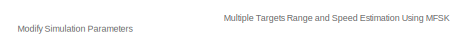
[diagram: root canvas - part 1/2, top left region]
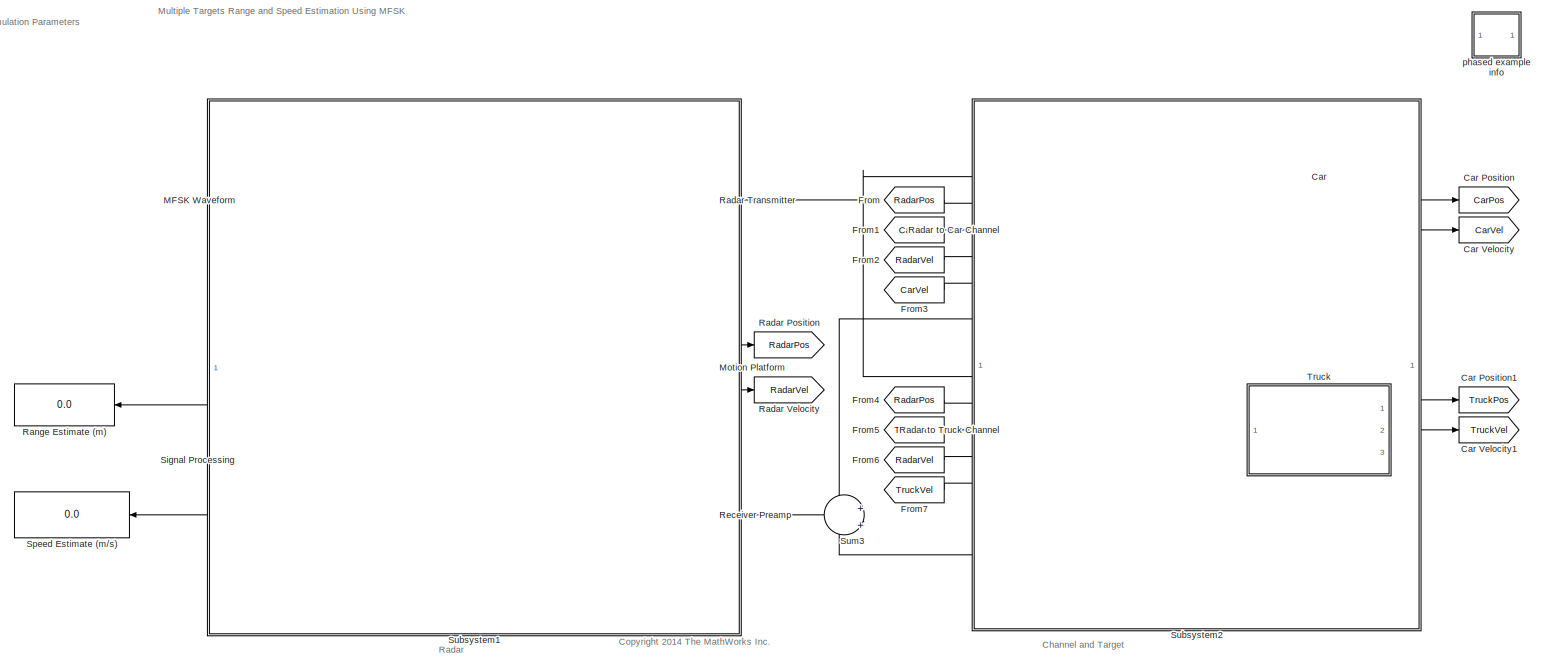
[diagram: root canvas - part 2/2, most of the canvas]
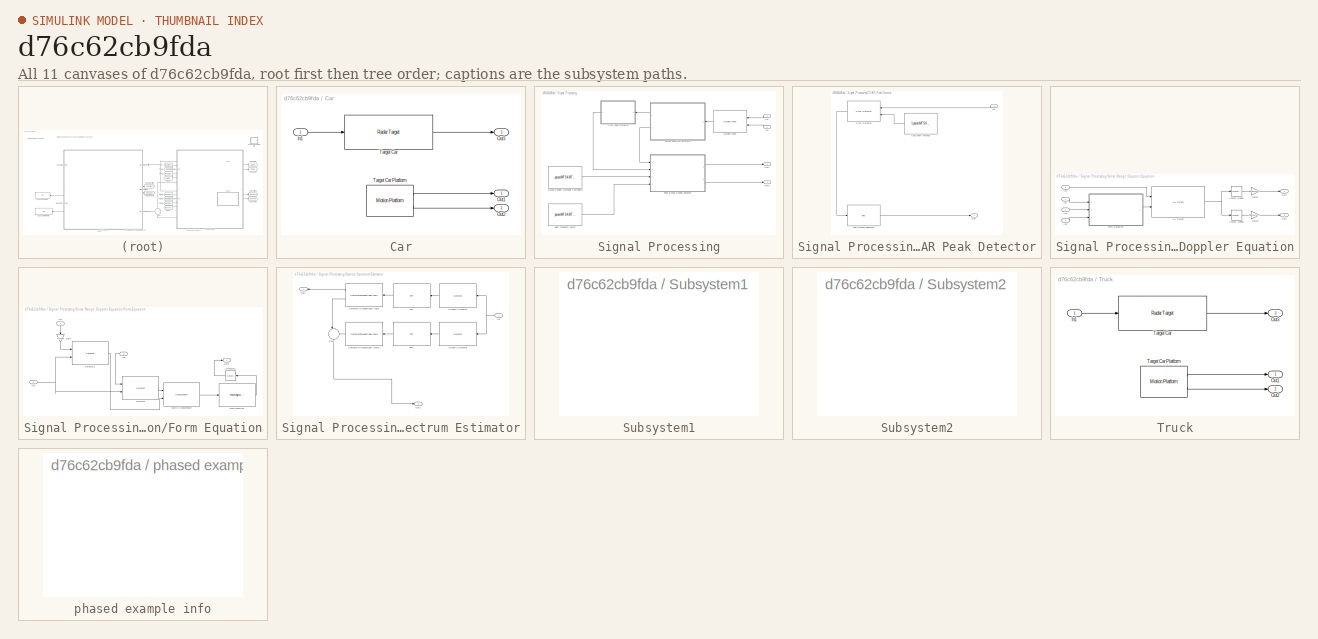
[diagram: thumbnail index - all 11 canvases of the model, root first then tree order]
MODEL slx_d76c62cb9fda
KIND model
CONFIG AbsTol = auto
CONFIG EnableMultiTasking = on
CONFIG FixedStep = auto
CONFIG MaxStep = auto
CONFIG MinStep = auto
CONFIG PreLoadFcn = helperslexMFSKMultiTargetsParam\n
CONFIG RelTol = 1e-3
CONFIG SampleTimeConstraint = Unconstrained
CONFIG Solver = FixedStepDiscrete
CONFIG SolverName = FixedStepDiscrete
CONFIG StartTime = 0.0
CONFIG StopTime = paramMFSKMT.T
BLOCK [SubSystem] Car
  Ports = [1, 3]
  RequestExecContextInheritance = off
BLOCK [Goto] Car Position
  GotoTag = CarPos
BLOCK [Goto] Car Position1
  GotoTag = TruckPos
BLOCK [Goto] Car Velocity
  GotoTag = CarVel
BLOCK [Goto] Car Velocity1
  GotoTag = TruckVel
BLOCK [Inport] Car/In1
  IconDisplay = Port number
BLOCK [Outport] Car/Out1
  IconDisplay = Port number
BLOCK [Outport] Car/Out2
  IconDisplay = Port number
  Port = 2
BLOCK [Outport] Car/Out3
  IconDisplay = Port number
  Port = 3
BLOCK [Reference] Car/Target Car  REF=phasedenvlib/Radar Target
  Ports = [1, 1]
  SourceBlock = phasedenvlib/Radar Target
  SourceProductBaseCode = AR
  SourceProductName = Phased Array System Toolbox
  SourceType = phased.RadarTarget
BLOCK [Reference] Car/Target Car Platform  REF=phasedenvlib/Motion Platform
  Ports = [0, 2]
  SourceBlock = phasedenvlib/Motion Platform
  SourceProductBaseCode = AR
  SourceProductName = Phased Array System Toolbox
  SourceType = phased.internal.SimulinkPlatform
BLOCK [From] From
  GotoTag = RadarPos
BLOCK [From] From1
  GotoTag = CarPos
BLOCK [From] From2
  GotoTag = RadarVel
BLOCK [From] From3
  GotoTag = CarVel
BLOCK [From] From4
  GotoTag = RadarPos
BLOCK [From] From5
  GotoTag = TruckPos
BLOCK [From] From6
  GotoTag = RadarVel
BLOCK [From] From7
  GotoTag = TruckVel
BLOCK [Reference] MFSK Waveform  REF=phasedwavlib/MFSK Waveform
  Ports = [0, 1]
  SourceBlock = phasedwavlib/MFSK Waveform
  SourceProductBaseCode = AR
  SourceProductName = Phased Array System Toolbox
  SourceType = phased.MFSKWaveform
BLOCK [Reference] Motion Platform  REF=phasedenvlib/Motion Platform
  Ports = [0, 2]
  SourceBlock = phasedenvlib/Motion Platform
  SourceProductBaseCode = AR
  SourceProductName = Phased Array System Toolbox
  SourceType = phased.internal.SimulinkPlatform
BLOCK [Goto] Radar Position
  GotoTag = RadarPos
BLOCK [Reference] Radar Transmitter  REF=phasedtxrxlib/Transmitter
  Ports = [1, 1]
  SourceBlock = phasedtxrxlib/Transmitter
  SourceProductBaseCode = AR
  SourceProductName = Phased Array System Toolbox
  SourceType = phased.Transmitter
BLOCK [Goto] Radar Velocity
  GotoTag = RadarVel
BLOCK [Reference] Radar to Car Channel  REF=phasedenvlib/Free Space
  Ports = [5, 1]
  SourceBlock = phasedenvlib/Free Space
  SourceProductBaseCode = AR
  SourceProductName = Phased Array System Toolbox
  SourceType = phased.FreeSpace
BLOCK [Reference] Radar to Truck Channel  REF=phasedenvlib/Free Space
  Ports = [5, 1]
  SourceBlock = phasedenvlib/Free Space
  SourceProductBaseCode = AR
  SourceProductName = Phased Array System Toolbox
  SourceType = phased.FreeSpace
BLOCK [Display] Range Estimate (m)
  Decimation = 1
  Ports = [1]
BLOCK [Reference] Receiver Preamp  REF=phasedtxrxlib/Receiver Preamp
  Ports = [1, 1]
  SourceBlock = phasedtxrxlib/Receiver Preamp
  SourceProductBaseCode = AR
  SourceProductName = Phased Array System Toolbox
  SourceType = phased.internal.SimulinkReceiverPreamp
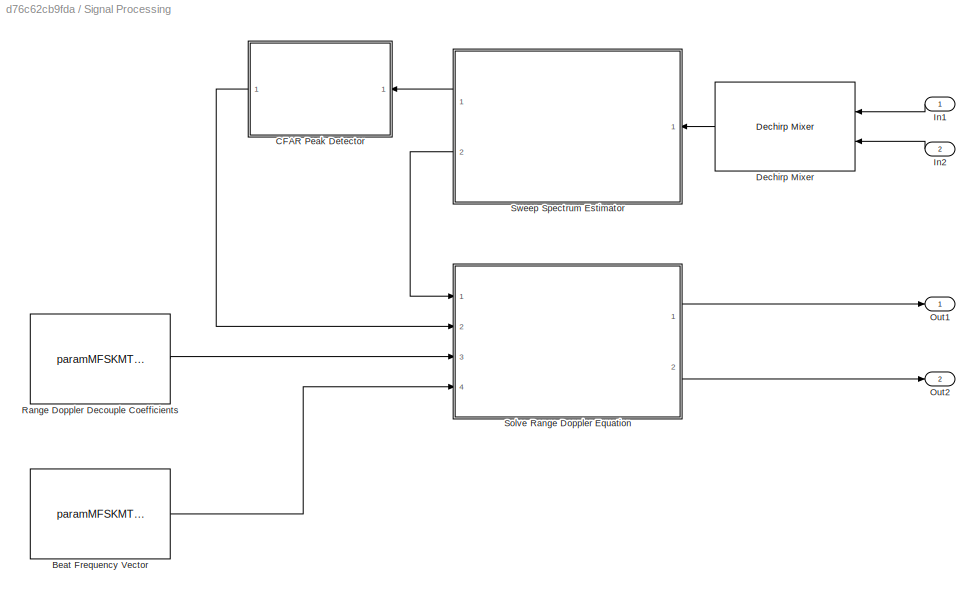
BLOCK [SubSystem] Signal Processing
  Ports = [2, 2]
  RequestExecContextInheritance = off
BLOCK [Constant] Signal Processing/Beat Frequency Vector
  Value = paramMFSKMT.beatfreq_vec
  VectorParams1D = off
BLOCK [SubSystem] Signal Processing/CFAR Peak Detector
  Ports = [1, 1]
  RequestExecContextInheritance = off
BLOCK [Reference] Signal Processing/CFAR Peak Detector/CFAR Detector  REF=phaseddetectlib/CFAR Detector
  Ports = [2, 1]
  SourceBlock = phaseddetectlib/CFAR Detector
  SourceProductBaseCode = AR
  SourceProductName = Phased Array System Toolbox
  SourceType = phased.CFARDetector
BLOCK [Constant] Signal Processing/CFAR Peak Detector/Cell Under Interest
  Value = 1:paramMFSKMT.Nstep/2
BLOCK [Find] Signal Processing/CFAR Peak Detector/Find Nonzero Elements
  NumberOfInputDimensions = 3
  Ports = [1, 1]
BLOCK [Inport] Signal Processing/CFAR Peak Detector/In1
  IconDisplay = Port number
BLOCK [Outport] Signal Processing/CFAR Peak Detector/Out1
  IconDisplay = Port number
BLOCK [Reference] Signal Processing/Dechirp Mixer  REF=phaseddetectlib/Dechirp Mixer
  Ports = [2, 1]
  SourceBlock = phaseddetectlib/Dechirp Mixer
  SourceProductBaseCode = AR
  SourceProductName = Phased Array System Toolbox
  SourceType = Dechirp
BLOCK [Inport] Signal Processing/In1
  IconDisplay = Port number
BLOCK [Inport] Signal Processing/In2
  IconDisplay = Port number
  Port = 2
BLOCK [Outport] Signal Processing/Out1
  IconDisplay = Port number
BLOCK [Outport] Signal Processing/Out2
  IconDisplay = Port number
  Port = 2
BLOCK [Constant] Signal Processing/Range Doppler Decouple Coefficients
  Value = paramMFSKMT.RDDecoupleCoeff
  VectorParams1D = off
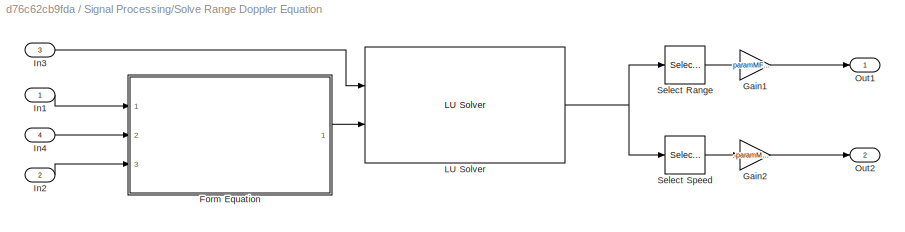
BLOCK [SubSystem] Signal Processing/Solve Range Doppler Equation
  Ports = [4, 2]
  RequestExecContextInheritance = off
BLOCK [SubSystem] Signal Processing/Solve Range Doppler Equation/Form Equation
  Ports = [3, 1]
  RequestExecContextInheritance = off
BLOCK [Gain] Signal Processing/Solve Range Doppler Equation/Form Equation/Gain
  Gain = 1/(2*pi)
  OutDataTypeStr = Inherit: Inherit via internal rule
  ParamDataTypeStr = Inherit: Inherit via internal rule
  SaturateOnIntegerOverflow = off
BLOCK [Inport] Signal Processing/Solve Range Doppler Equation/Form Equation/In1
  IconDisplay = Port number
BLOCK [Inport] Signal Processing/Solve Range Doppler Equation/Form Equation/In2
  IconDisplay = Port number
  Port = 2
BLOCK [Inport] Signal Processing/Solve Range Doppler Equation/Form Equation/In3
  IconDisplay = Port number
  Port = 3
BLOCK [Math] Signal Processing/Solve Range Doppler Equation/Form Equation/Math Function
  Operator = transpose
  Ports = [1, 1]
BLOCK [Concatenate] Signal Processing/Solve Range Doppler Equation/Form Equation/Matrix Concatenate
  ConcatenateDimension = 2
  Mode = Multidimensional array
  Ports = [2, 1]
BLOCK [Outport] Signal Processing/Solve Range Doppler Equation/Form Equation/Out1
  IconDisplay = Port number
BLOCK [Selector] Signal Processing/Solve Range Doppler Equation/Form Equation/Selector
  IndexOptions = Index vector (port),Index vector (dialog)
  Indices = [1 3],1
  InputPortWidth = 3
  NumberOfDimensions = 2
  OutputSizes = 1,1
  Ports = [2, 1]
BLOCK [Selector] Signal Processing/Solve Range Doppler Equation/Form Equation/Selector1
  IndexOptions = Index vector (port),Index vector (dialog)
  Indices = [1 3],1
  InputPortWidth = 3
  NumberOfDimensions = 2
  OutputSizes = 1,1
  Ports = [2, 1]
BLOCK [Selector] Signal Processing/Solve Range Doppler Equation/Form Equation/Selector2
  IndexOptions = Index vector (dialog),Index vector (dialog)
  Indices = [1 2],[1 2]
  InputPortWidth = 3
  NumberOfDimensions = 2
  OutputSizes = 1,1
  Ports = [1, 1]
BLOCK [Gain] Signal Processing/Solve Range Doppler Equation/Gain1
  Gain = paramMFSKMT.C/2
  OutDataTypeStr = Inherit: Inherit via internal rule
  ParamDataTypeStr = Inherit: Inherit via internal rule
  SaturateOnIntegerOverflow = off
BLOCK [Gain] Signal Processing/Solve Range Doppler Equation/Gain2
  Gain = -paramMFSKMT.lambda/2
  OutDataTypeStr = Inherit: Inherit via internal rule
  ParamDataTypeStr = Inherit: Inherit via internal rule
  SaturateOnIntegerOverflow = off
BLOCK [Inport] Signal Processing/Solve Range Doppler Equation/In1
  IconDisplay = Port number
BLOCK [Inport] Signal Processing/Solve Range Doppler Equation/In2
  IconDisplay = Port number
  Port = 2
BLOCK [Inport] Signal Processing/Solve Range Doppler Equation/In3
  IconDisplay = Port number
  Port = 3
BLOCK [Inport] Signal Processing/Solve Range Doppler Equation/In4
  IconDisplay = Port number
  Port = 4
BLOCK [Reference] Signal Processing/Solve Range Doppler Equation/LU Solver  REF=dspsolvers/LU Solver
  Ports = [2, 1]
  SourceBlock = dspsolvers/LU Solver
  SourceProductBaseCode = DS
  SourceProductName = DSP System Toolbox
  SourceType = LU Solver
BLOCK [Outport] Signal Processing/Solve Range Doppler Equation/Out1
  IconDisplay = Port number
BLOCK [Outport] Signal Processing/Solve Range Doppler Equation/Out2
  IconDisplay = Port number
  Port = 2
BLOCK [Selector] Signal Processing/Solve Range Doppler Equation/Select Range
  IndexOptions = Index vector (dialog),Select all
  Indices = 1,1
  InputPortWidth = 3
  NumberOfDimensions = 2
  OutputSizes = 1,1
  Ports = [1, 1]
BLOCK [Selector] Signal Processing/Solve Range Doppler Equation/Select Speed
  IndexOptions = Index vector (dialog),Select all
  Indices = 2,1
  InputPortWidth = 3
  NumberOfDimensions = 2
  OutputSizes = 1,1
  Ports = [1, 1]
BLOCK [SubSystem] Signal Processing/Sweep Spectrum Estimator
  Ports = [1, 2]
  RequestExecContextInheritance = off
BLOCK [ComplexToMagnitudeAngle] Signal Processing/Sweep Spectrum Estimator/Complex to Magnitude-Angle
  Ports = [1, 2]
BLOCK [ComplexToMagnitudeAngle] Signal Processing/Sweep Spectrum Estimator/Complex to Magnitude-Angle1
  Output = Angle
  Ports = [1, 1]
BLOCK [Reference] Signal Processing/Sweep Spectrum Estimator/FFT  REF=dspxfrm3/FFT
  Ports = [1, 1]
  SourceBlock = dspxfrm3/FFT
  SourceProductBaseCode = DS
  SourceProductName = DSP System Toolbox
  SourceType = FFT
BLOCK [Reference] Signal Processing/Sweep Spectrum Estimator/FFT1  REF=dspxfrm3/FFT
  Ports = [1, 1]
  SourceBlock = dspxfrm3/FFT
  SourceProductBaseCode = DS
  SourceProductName = DSP System Toolbox
  SourceType = FFT
BLOCK [Inport] Signal Processing/Sweep Spectrum Estimator/In1
  IconDisplay = Port number
BLOCK [Outport] Signal Processing/Sweep Spectrum Estimator/Out1
  IconDisplay = Port number
BLOCK [Outport] Signal Processing/Sweep Spectrum Estimator/Out2
  IconDisplay = Port number
  Port = 2
BLOCK [Sum] Signal Processing/Sweep Spectrum Estimator/Sum
  IconShape = round
  InputSameDT = off
  Inputs = |-+
  OutDataTypeStr = Inherit: Inherit via internal rule
  Ports = [2, 1]
  SaturateOnIntegerOverflow = off
BLOCK [Selector] Signal Processing/Sweep Spectrum Estimator/Sweep 1 Selector
  IndexOptions = Index vector (dialog),Index vector (dialog)
  Indices = (1:2:paramMFSKMT.Nstep)*paramMFSKMT.Nsampperstep,1
  InputPortWidth = 3
  NumberOfDimensions = 2
  OutputSizes = 1,1
  Ports = [1, 1]
BLOCK [Selector] Signal Processing/Sweep Spectrum Estimator/Sweep 2 Selector
  IndexOptions = Index vector (dialog),Index vector (dialog)
  Indices = (2:2:paramMFSKMT.Nstep)*paramMFSKMT.Nsampperstep,1
  InputPortWidth = 3
  NumberOfDimensions = 2
  OutputSizes = 1,1
  Ports = [1, 1]
BLOCK [Display] Speed Estimate (m//s)
  Decimation = 1
  Ports = [1]
BLOCK [SubSystem] Subsystem1
  Ports = []
  RequestExecContextInheritance = off
BLOCK [SubSystem] Subsystem2
  Ports = []
  RequestExecContextInheritance = off
BLOCK [Sum] Sum3
  IconShape = round
  InputSameDT = off
  Inputs = +|+
  OutDataTypeStr = Inherit: Inherit via internal rule
  Ports = [2, 1]
  SaturateOnIntegerOverflow = off
BLOCK [SubSystem] Truck
  Ports = [1, 3]
  RequestExecContextInheritance = off
BLOCK [Inport] Truck/In1
  IconDisplay = Port number
BLOCK [Outport] Truck/Out1
  IconDisplay = Port number
BLOCK [Outport] Truck/Out2
  IconDisplay = Port number
  Port = 2
BLOCK [Outport] Truck/Out3
  IconDisplay = Port number
  Port = 3
BLOCK [Reference] Truck/Target Car  REF=phasedenvlib/Radar Target
  Ports = [1, 1]
  SourceBlock = phasedenvlib/Radar Target
  SourceProductBaseCode = AR
  SourceProductName = Phased Array System Toolbox
  SourceType = phased.RadarTarget
BLOCK [Reference] Truck/Target Car Platform  REF=phasedenvlib/Motion Platform
  Ports = [0, 2]
  SourceBlock = phasedenvlib/Motion Platform
  SourceProductBaseCode = AR
  SourceProductName = Phased Array System Toolbox
  SourceType = phased.internal.SimulinkPlatform
BLOCK [SubSystem] phased example info
  OpenFcn = modelname = 'slexFMCWExample';\nhelpview(fullfile(matlabroot,'help','phased','helptargets.map'),sprintf('%sExample',modelname));\nclear modelname;
  Ports = []
  RequestExecContextInheritance = off
ANNOTATION (root): Channel and Target
ANNOTATION (root): Radar
ANNOTATION (root): <copyright redacted>
ANNOTATION (root): Multiple Targets Range and Speed Estimation Using MFSK
ANNOTATION (root): Modify Simulation Parameters
LINE Car/In1:1 -> Car/Target Car:1
LINE Car/Target Car Platform:1 -> Car/Out1:1
LINE Car/Target Car Platform:2 -> Car/Out2:1
LINE Car/Target Car:1 -> Car/Out3:1
LINE Car:1 -> Car Position:1
LINE Car:2 -> Car Velocity:1
LINE Car:3 -> Sum3:1
LINE From1:1 -> Radar to Car Channel:3
LINE From2:1 -> Radar to Car Channel:4
LINE From3:1 -> Radar to Car Channel:5
LINE From4:1 -> Radar to Truck Channel:2
LINE From5:1 -> Radar to Truck Channel:3
LINE From6:1 -> Radar to Truck Channel:4
LINE From7:1 -> Radar to Truck Channel:5
LINE From:1 -> Radar to Car Channel:2
NET MFSK Waveform:1 -> Radar Transmitter:1, Signal Processing:1
LINE Motion Platform:1 -> Radar Position:1
LINE Motion Platform:2 -> Radar Velocity:1
NET Radar Transmitter:1 -> Radar to Car Channel:1, Radar to Truck Channel:1
LINE Radar to Car Channel:1 -> Car:1
LINE Radar to Truck Channel:1 -> Truck:1
LINE Receiver Preamp:1 -> Signal Processing:2
LINE Signal Processing/Beat Frequency Vector:1 -> Signal Processing/Solve Range Doppler Equation:4
LINE Signal Processing/CFAR Peak Detector/CFAR Detector:1 -> Signal Processing/CFAR Peak Detector/Find Nonzero Elements:1
LINE Signal Processing/CFAR Peak Detector/Cell Under Interest:1 -> Signal Processing/CFAR Peak Detector/CFAR Detector:2
LINE Signal Processing/CFAR Peak Detector/Find Nonzero Elements:1 -> Signal Processing/CFAR Peak Detector/Out1:1
LINE Signal Processing/CFAR Peak Detector/In1:1 -> Signal Processing/CFAR Peak Detector/CFAR Detector:1
LINE Signal Processing/CFAR Peak Detector:1 -> Signal Processing/Solve Range Doppler Equation:2
LINE Signal Processing/Dechirp Mixer:1 -> Signal Processing/Sweep Spectrum Estimator:1
LINE Signal Processing/In1:1 -> Signal Processing/Dechirp Mixer:1
LINE Signal Processing/In2:1 -> Signal Processing/Dechirp Mixer:2
LINE Signal Processing/Range Doppler Decouple Coefficients:1 -> Signal Processing/Solve Range Doppler Equation:3
LINE Signal Processing/Solve Range Doppler Equation/Form Equation/Gain:1 -> Signal Processing/Solve Range Doppler Equation/Form Equation/Selector1:1
LINE Signal Processing/Solve Range Doppler Equation/Form Equation/In1:1 -> Signal Processing/Solve Range Doppler Equation/Form Equation/Gain:1
LINE Signal Processing/Solve Range Doppler Equation/Form Equation/In2:1 -> Signal Processing/Solve Range Doppler Equation/Form Equation/Selector:1
NET Signal Processing/Solve Range Doppler Equation/Form Equation/In3:1 -> Signal Processing/Solve Range Doppler Equation/Form Equation/Selector1:2, Signal Processing/Solve Range Doppler Equation/Form Equation/Selector:2
LINE Signal Processing/Solve Range Doppler Equation/Form Equation/Math Function:1 -> Signal Processing/Solve Range Doppler Equation/Form Equation/Selector2:1
LINE Signal Processing/Solve Range Doppler Equation/Form Equation/Matrix Concatenate:1 -> Signal Processing/Solve Range Doppler Equation/Form Equation/Math Function:1
LINE Signal Processing/Solve Range Doppler Equation/Form Equation/Selector1:1 -> Signal Processing/Solve Range Doppler Equation/Form Equation/Matrix Concatenate:2
LINE Signal Processing/Solve Range Doppler Equation/Form Equation/Selector2:1 -> Signal Processing/Solve Range Doppler Equation/Form Equation/Out1:1
LINE Signal Processing/Solve Range Doppler Equation/Form Equation/Selector:1 -> Signal Processing/Solve Range Doppler Equation/Form Equation/Matrix Concatenate:1
LINE Signal Processing/Solve Range Doppler Equation/Form Equation:1 -> Signal Processing/Solve Range Doppler Equation/LU Solver:2
LINE Signal Processing/Solve Range Doppler Equation/Gain1:1 -> Signal Processing/Solve Range Doppler Equation/Out1:1
LINE Signal Processing/Solve Range Doppler Equation/Gain2:1 -> Signal Processing/Solve Range Doppler Equation/Out2:1
LINE Signal Processing/Solve Range Doppler Equation/In1:1 -> Signal Processing/Solve Range Doppler Equation/Form Equation:1
LINE Signal Processing/Solve Range Doppler Equation/In2:1 -> Signal Processing/Solve Range Doppler Equation/Form Equation:3
LINE Signal Processing/Solve Range Doppler Equation/In3:1 -> Signal Processing/Solve Range Doppler Equation/LU Solver:1
LINE Signal Processing/Solve Range Doppler Equation/In4:1 -> Signal Processing/Solve Range Doppler Equation/Form Equation:2
NET Signal Processing/Solve Range Doppler Equation/LU Solver:1 -> Signal Processing/Solve Range Doppler Equation/Select Range:1, Signal Processing/Solve Range Doppler Equation/Select Speed:1
LINE Signal Processing/Solve Range Doppler Equation/Select Range:1 -> Signal Processing/Solve Range Doppler Equation/Gain1:1
LINE Signal Processing/Solve Range Doppler Equation/Select Speed:1 -> Signal Processing/Solve Range Doppler Equation/Gain2:1
LINE Signal Processing/Solve Range Doppler Equation:1 -> Signal Processing/Out1:1
LINE Signal Processing/Solve Range Doppler Equation:2 -> Signal Processing/Out2:1
LINE Signal Processing/Sweep Spectrum Estimator/Complex to Magnitude-Angle1:1 -> Signal Processing/Sweep Spectrum Estimator/Sum:2
LINE Signal Processing/Sweep Spectrum Estimator/Complex to Magnitude-Angle:1 -> Signal Processing/Sweep Spectrum Estimator/Out1:1
LINE Signal Processing/Sweep Spectrum Estimator/Complex to Magnitude-Angle:2 -> Signal Processing/Sweep Spectrum Estimator/Sum:1
LINE Signal Processing/Sweep Spectrum Estimator/FFT1:1 -> Signal Processing/Sweep Spectrum Estimator/Complex to Magnitude-Angle1:1
LINE Signal Processing/Sweep Spectrum Estimator/FFT:1 -> Signal Processing/Sweep Spectrum Estimator/Complex to Magnitude-Angle:1
NET Signal Processing/Sweep Spectrum Estimator/In1:1 -> Signal Processing/Sweep Spectrum Estimator/Sweep 1 Selector:1, Signal Processing/Sweep Spectrum Estimator/Sweep 2 Selector:1
LINE Signal Processing/Sweep Spectrum Estimator/Sum:1 -> Signal Processing/Sweep Spectrum Estimator/Out2:1
LINE Signal Processing/Sweep Spectrum Estimator/Sweep 1 Selector:1 -> Signal Processing/Sweep Spectrum Estimator/FFT:1
LINE Signal Processing/Sweep Spectrum Estimator/Sweep 2 Selector:1 -> Signal Processing/Sweep Spectrum Estimator/FFT1:1
LINE Signal Processing/Sweep Spectrum Estimator:1 -> Signal Processing/CFAR Peak Detector:1
LINE Signal Processing/Sweep Spectrum Estimator:2 -> Signal Processing/Solve Range Doppler Equation:1
LINE Signal Processing:1 -> Range Estimate (m):1
LINE Signal Processing:2 -> Speed Estimate (m//s):1
LINE Sum3:1 -> Receiver Preamp:1
LINE Truck/In1:1 -> Truck/Target Car:1
LINE Truck/Target Car Platform:1 -> Truck/Out1:1
LINE Truck/Target Car Platform:2 -> Truck/Out2:1
LINE Truck/Target Car:1 -> Truck/Out3:1
LINE Truck:1 -> Car Position1:1
LINE Truck:2 -> Car Velocity1:1
LINE Truck:3 -> Sum3:2
note: NET lines group one-source signal fan-out (src -> all destinations, sorted); 1:1 wires keep LINE
